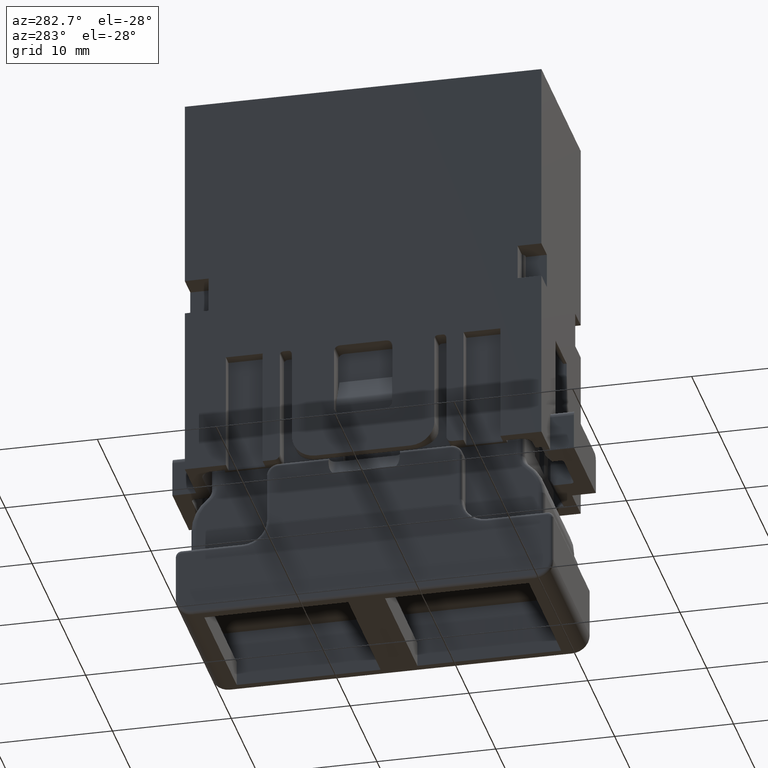
[diagram: clean part render]
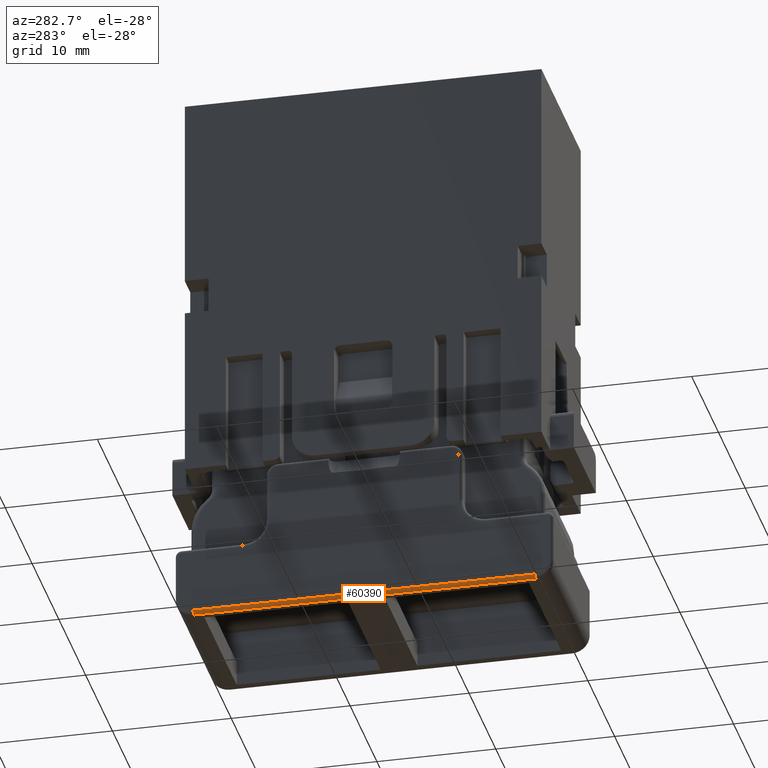
[diagram: same view with one face highlighted and labeled with its STEP entity id]
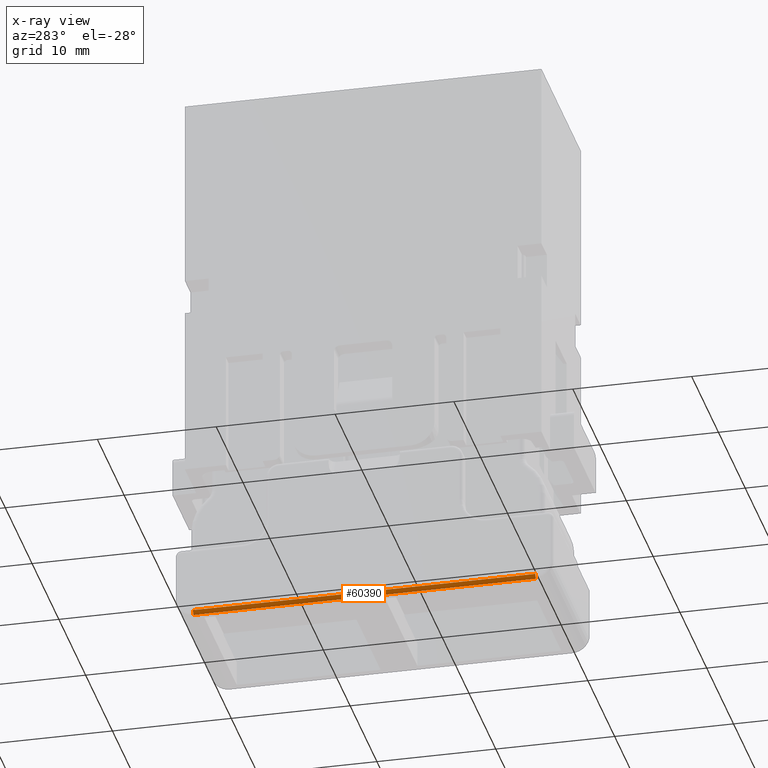
[diagram: x-ray of the same camera — body ghosted, the highlighted face saturated]
A machine part, auxiliary view. The second image highlights one B-rep face of the part: STEP entity #60390.
The next image is the same camera in x-ray: the body ghosted, the highlighted face saturated — about 0% of this face is hidden behind the body in this view.
In plain terms, the highlighted cylindrical surface (edge-blend (fillet) strip) has radius 0.3 mm, axis along (0, 1, 0).
Its self-contained STEP definition (entity closure, byte-faithful):
#46350=CARTESIAN_POINT('',(46.375,65.899999999984,-44.9499999999999));
#46360=VERTEX_POINT('',#46350);
#46390=CARTESIAN_POINT('',(0.,65.899999999984,-44.9499999999999));
#46400=DIRECTION('',(1.,0.,0.));
#46410=VECTOR('',#46400,1.);
#46420=LINE('',#46390,#46410);
#46430=CARTESIAN_POINT('',(75.175,65.899999999984,-44.9499999999999));
#46440=VERTEX_POINT('',#46430);
#46450=EDGE_CURVE('',#46360,#46440,#46420,.T.);
#60070=CARTESIAN_POINT('',(0.,65.599999999984,-44.9499999999999));
#60080=DIRECTION('',(1.,0.,0.));
#60090=DIRECTION('',(0.,-1.,0.));
#60100=AXIS2_PLACEMENT_3D('',#60070,#60080,#60090);
#60110=CYLINDRICAL_SURFACE('',#60100,0.3);
#60120=CARTESIAN_POINT('',(46.375,65.599999999984,-44.9499999999999));
#60130=DIRECTION('',(1.,0.,0.));
#60140=DIRECTION('',(0.,-1.,0.));
#60150=AXIS2_PLACEMENT_3D('',#60120,#60130,#60140);
#60160=CIRCLE('',#60150,0.3);
#60170=CARTESIAN_POINT('',(46.375,65.599999999984,-45.2499999999999));
#60180=VERTEX_POINT('',#60170);
#60190=EDGE_CURVE('',#60180,#46360,#60160,.T.);
#60200=ORIENTED_EDGE('',*,*,#60190,.T.);
#60210=CARTESIAN_POINT('',(0.,65.599999999984,-45.2499999999999));
#60220=DIRECTION('',(1.,0.,0.));
#60230=VECTOR('',#60220,1.);
#60240=LINE('',#60210,#60230);
#60250=CARTESIAN_POINT('',(75.175,65.599999999984,-45.2499999999999));
#60260=VERTEX_POINT('',#60250);
#60270=EDGE_CURVE('',#60180,#60260,#60240,.T.);
#60280=ORIENTED_EDGE('',*,*,#60270,.F.);
#60290=CARTESIAN_POINT('',(75.175,65.599999999984,-44.9499999999999));
#60300=DIRECTION('',(-1.,0.,0.));
#60310=DIRECTION('',(0.,1.,0.));
#60320=AXIS2_PLACEMENT_3D('',#60290,#60300,#60310);
#60330=CIRCLE('',#60320,0.3);
#60340=EDGE_CURVE('',#46440,#60260,#60330,.T.);
#60350=ORIENTED_EDGE('',*,*,#60340,.T.);
#60360=ORIENTED_EDGE('',*,*,#46450,.T.);
#60370=EDGE_LOOP('',(#60360,#60350,#60280,#60200));
#60380=FACE_OUTER_BOUND('',#60370,.T.);
#60390=ADVANCED_FACE('',(#60380),#60110,.T.);